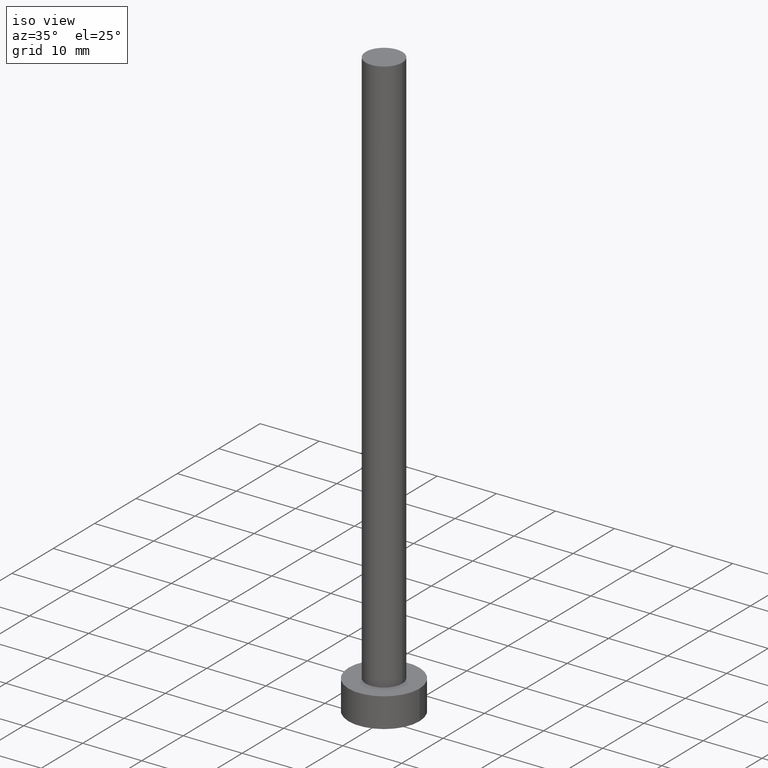
[diagram: clean part render]
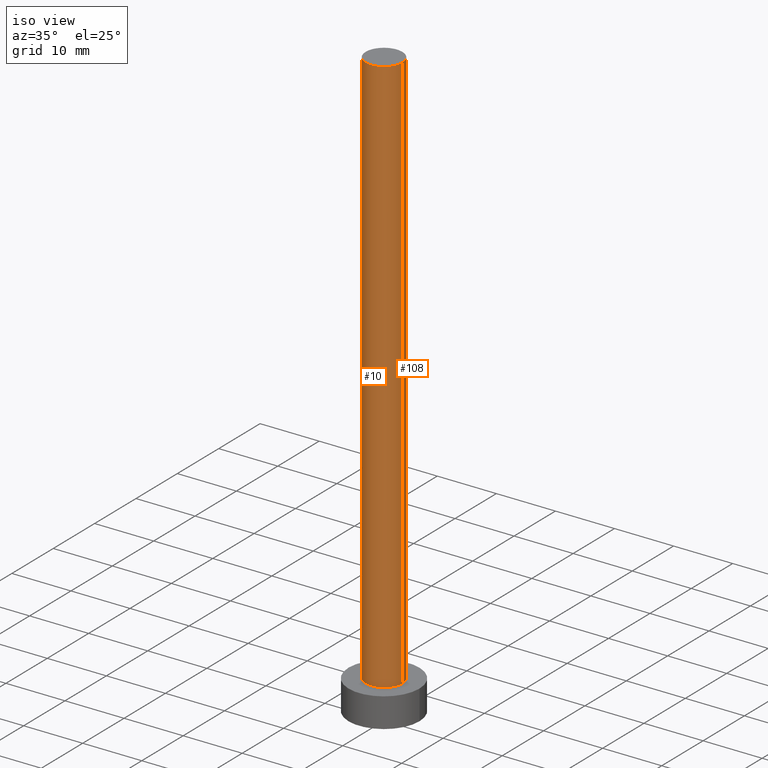
[diagram: same view with one multi-face feature highlighted, each face labeled with its STEP entity id]
A machine part, iso view. The highlighted faces form ONE feature: a constant-radius fillet chain: 2 tangent blend faces with common blend radius 3.1 mm. The faces share edges in the B-rep.
Their STEP definitions:
[1] entity #10 (Cylinder):
#2 = VERTEX_POINT ( 'NONE', #91 ) ;
#5 = AXIS2_PLACEMENT_3D ( 'NONE', #106, #135, #116 ) ;
#8 = ORIENTED_EDGE ( 'NONE', *, *, #81, .T. ) ;
#10 = ADVANCED_FACE ( 'NONE', ( #145 ), #52, .T. ) ;
#23 = CARTESIAN_POINT ( 'NONE',  ( 3.100000000000000089, 3.796405077356794918E-16, 100.0000000000000000 ) ) ;
#26 = ORIENTED_EDGE ( 'NONE', *, *, #223, .F. ) ;
#51 = DIRECTION ( 'NONE',  ( -0.000000000000000000, -0.000000000000000000, -1.000000000000000000 ) ) ;
#52 = CYLINDRICAL_SURFACE ( 'NONE', #162, 3.100000000000000089 ) ;
#60 = VECTOR ( 'NONE', #51, 1000.000000000000000 ) ;
#78 = CARTESIAN_POINT ( 'NONE',  ( 0.000000000000000000, 0.000000000000000000, 5.000000000000000000 ) ) ;
#80 = VERTEX_POINT ( 'NONE', #254 ) ;
#81 = EDGE_CURVE ( 'NONE', #80, #2, #90, .T. ) ;
#86 = VERTEX_POINT ( 'NONE', #250 ) ;
#90 = CIRCLE ( 'NONE', #156, 3.100000000000000089 ) ;
#91 = CARTESIAN_POINT ( 'NONE',  ( 3.100000000000000089, 3.796405077356794918E-16, 5.000000000000000000 ) ) ;
#93 = DIRECTION ( 'NONE',  ( -1.000000000000000000, 0.000000000000000000, 0.000000000000000000 ) ) ;
#98 = ORIENTED_EDGE ( 'NONE', *, *, #221, .T. ) ;
#106 = CARTESIAN_POINT ( 'NONE',  ( 0.000000000000000000, 0.000000000000000000, 100.0000000000000000 ) ) ;
#114 = CARTESIAN_POINT ( 'NONE',  ( 0.000000000000000000, 0.000000000000000000, 100.0000000000000000 ) ) ;
#116 = DIRECTION ( 'NONE',  ( 1.000000000000000000, 0.000000000000000000, 0.000000000000000000 ) ) ;
#127 = DIRECTION ( 'NONE',  ( -0.000000000000000000, -0.000000000000000000, -1.000000000000000000 ) ) ;
#128 = EDGE_CURVE ( 'NONE', #240, #2, #220, .T. ) ;
#129 = CARTESIAN_POINT ( 'NONE',  ( 3.100000000000000089, 3.796405077356794918E-16, 100.0000000000000000 ) ) ;
#135 = DIRECTION ( 'NONE',  ( 0.000000000000000000, 0.000000000000000000, 1.000000000000000000 ) ) ;
#145 = FACE_OUTER_BOUND ( 'NONE', #168, .T. ) ;
#147 = DIRECTION ( 'NONE',  ( -0.000000000000000000, -0.000000000000000000, -1.000000000000000000 ) ) ;
#152 = DIRECTION ( 'NONE',  ( 0.000000000000000000, 0.000000000000000000, 1.000000000000000000 ) ) ;
#156 = AXIS2_PLACEMENT_3D ( 'NONE', #78, #152, #235 ) ;
#162 = AXIS2_PLACEMENT_3D ( 'NONE', #114, #147, #93 ) ;
#163 = LINE ( 'NONE', #227, #169 ) ;
#168 = EDGE_LOOP ( 'NONE', ( #207, #26, #98, #8 ) ) ;
#169 = VECTOR ( 'NONE', #127, 1000.000000000000000 ) ;
#173 = CIRCLE ( 'NONE', #5, 3.100000000000000089 ) ;
#207 = ORIENTED_EDGE ( 'NONE', *, *, #128, .F. ) ;
#220 = LINE ( 'NONE', #129, #60 ) ;
#221 = EDGE_CURVE ( 'NONE', #86, #80, #163, .T. ) ;
#223 = EDGE_CURVE ( 'NONE', #86, #240, #173, .T. ) ;
#227 = CARTESIAN_POINT ( 'NONE',  ( -3.100000000000000089, 0.000000000000000000, 100.0000000000000000 ) ) ;
#235 = DIRECTION ( 'NONE',  ( 1.000000000000000000, 0.000000000000000000, 0.000000000000000000 ) ) ;
#240 = VERTEX_POINT ( 'NONE', #23 ) ;
#250 = CARTESIAN_POINT ( 'NONE',  ( -3.100000000000000089, 0.000000000000000000, 100.0000000000000000 ) ) ;
#254 = CARTESIAN_POINT ( 'NONE',  ( -3.100000000000000089, 0.000000000000000000, 5.000000000000000000 ) ) ;
[2] entity #108 (Cylinder):
#2 = VERTEX_POINT ( 'NONE', #91 ) ;
#3 = AXIS2_PLACEMENT_3D ( 'NONE', #209, #197, #37 ) ;
#23 = CARTESIAN_POINT ( 'NONE',  ( 3.100000000000000089, 3.796405077356794918E-16, 100.0000000000000000 ) ) ;
#37 = DIRECTION ( 'NONE',  ( -1.000000000000000000, 0.000000000000000000, 0.000000000000000000 ) ) ;
#38 = EDGE_CURVE ( 'NONE', #2, #80, #48, .T. ) ;
#42 = AXIS2_PLACEMENT_3D ( 'NONE', #228, #146, #55 ) ;
#48 = CIRCLE ( 'NONE', #42, 3.100000000000000089 ) ;
#51 = DIRECTION ( 'NONE',  ( -0.000000000000000000, -0.000000000000000000, -1.000000000000000000 ) ) ;
#55 = DIRECTION ( 'NONE',  ( 1.000000000000000000, 0.000000000000000000, 0.000000000000000000 ) ) ;
#60 = VECTOR ( 'NONE', #51, 1000.000000000000000 ) ;
#76 = CARTESIAN_POINT ( 'NONE',  ( 0.000000000000000000, 0.000000000000000000, 100.0000000000000000 ) ) ;
#80 = VERTEX_POINT ( 'NONE', #254 ) ;
#86 = VERTEX_POINT ( 'NONE', #250 ) ;
#91 = CARTESIAN_POINT ( 'NONE',  ( 3.100000000000000089, 3.796405077356794918E-16, 5.000000000000000000 ) ) ;
#92 = EDGE_LOOP ( 'NONE', ( #253, #236, #132, #181 ) ) ;
#108 = ADVANCED_FACE ( 'NONE', ( #243 ), #232, .T. ) ;
#109 = DIRECTION ( 'NONE',  ( 0.000000000000000000, 0.000000000000000000, 1.000000000000000000 ) ) ;
#127 = DIRECTION ( 'NONE',  ( -0.000000000000000000, -0.000000000000000000, -1.000000000000000000 ) ) ;
#128 = EDGE_CURVE ( 'NONE', #240, #2, #220, .T. ) ;
#129 = CARTESIAN_POINT ( 'NONE',  ( 3.100000000000000089, 3.796405077356794918E-16, 100.0000000000000000 ) ) ;
#132 = ORIENTED_EDGE ( 'NONE', *, *, #38, .T. ) ;
#140 = EDGE_CURVE ( 'NONE', #240, #86, #175, .T. ) ;
#146 = DIRECTION ( 'NONE',  ( 0.000000000000000000, 0.000000000000000000, 1.000000000000000000 ) ) ;
#163 = LINE ( 'NONE', #227, #169 ) ;
#169 = VECTOR ( 'NONE', #127, 1000.000000000000000 ) ;
#175 = CIRCLE ( 'NONE', #177, 3.100000000000000089 ) ;
#177 = AXIS2_PLACEMENT_3D ( 'NONE', #76, #109, #184 ) ;
#181 = ORIENTED_EDGE ( 'NONE', *, *, #221, .F. ) ;
#184 = DIRECTION ( 'NONE',  ( 1.000000000000000000, 0.000000000000000000, 0.000000000000000000 ) ) ;
#197 = DIRECTION ( 'NONE',  ( -0.000000000000000000, -0.000000000000000000, -1.000000000000000000 ) ) ;
#209 = CARTESIAN_POINT ( 'NONE',  ( 0.000000000000000000, 0.000000000000000000, 100.0000000000000000 ) ) ;
#220 = LINE ( 'NONE', #129, #60 ) ;
#221 = EDGE_CURVE ( 'NONE', #86, #80, #163, .T. ) ;
#227 = CARTESIAN_POINT ( 'NONE',  ( -3.100000000000000089, 0.000000000000000000, 100.0000000000000000 ) ) ;
#228 = CARTESIAN_POINT ( 'NONE',  ( 0.000000000000000000, 0.000000000000000000, 5.000000000000000000 ) ) ;
#232 = CYLINDRICAL_SURFACE ( 'NONE', #3, 3.100000000000000089 ) ;
#236 = ORIENTED_EDGE ( 'NONE', *, *, #128, .T. ) ;
#240 = VERTEX_POINT ( 'NONE', #23 ) ;
#243 = FACE_OUTER_BOUND ( 'NONE', #92, .T. ) ;
#250 = CARTESIAN_POINT ( 'NONE',  ( -3.100000000000000089, 0.000000000000000000, 100.0000000000000000 ) ) ;
#253 = ORIENTED_EDGE ( 'NONE', *, *, #140, .F. ) ;
#254 = CARTESIAN_POINT ( 'NONE',  ( -3.100000000000000089, 0.000000000000000000, 5.000000000000000000 ) ) ;